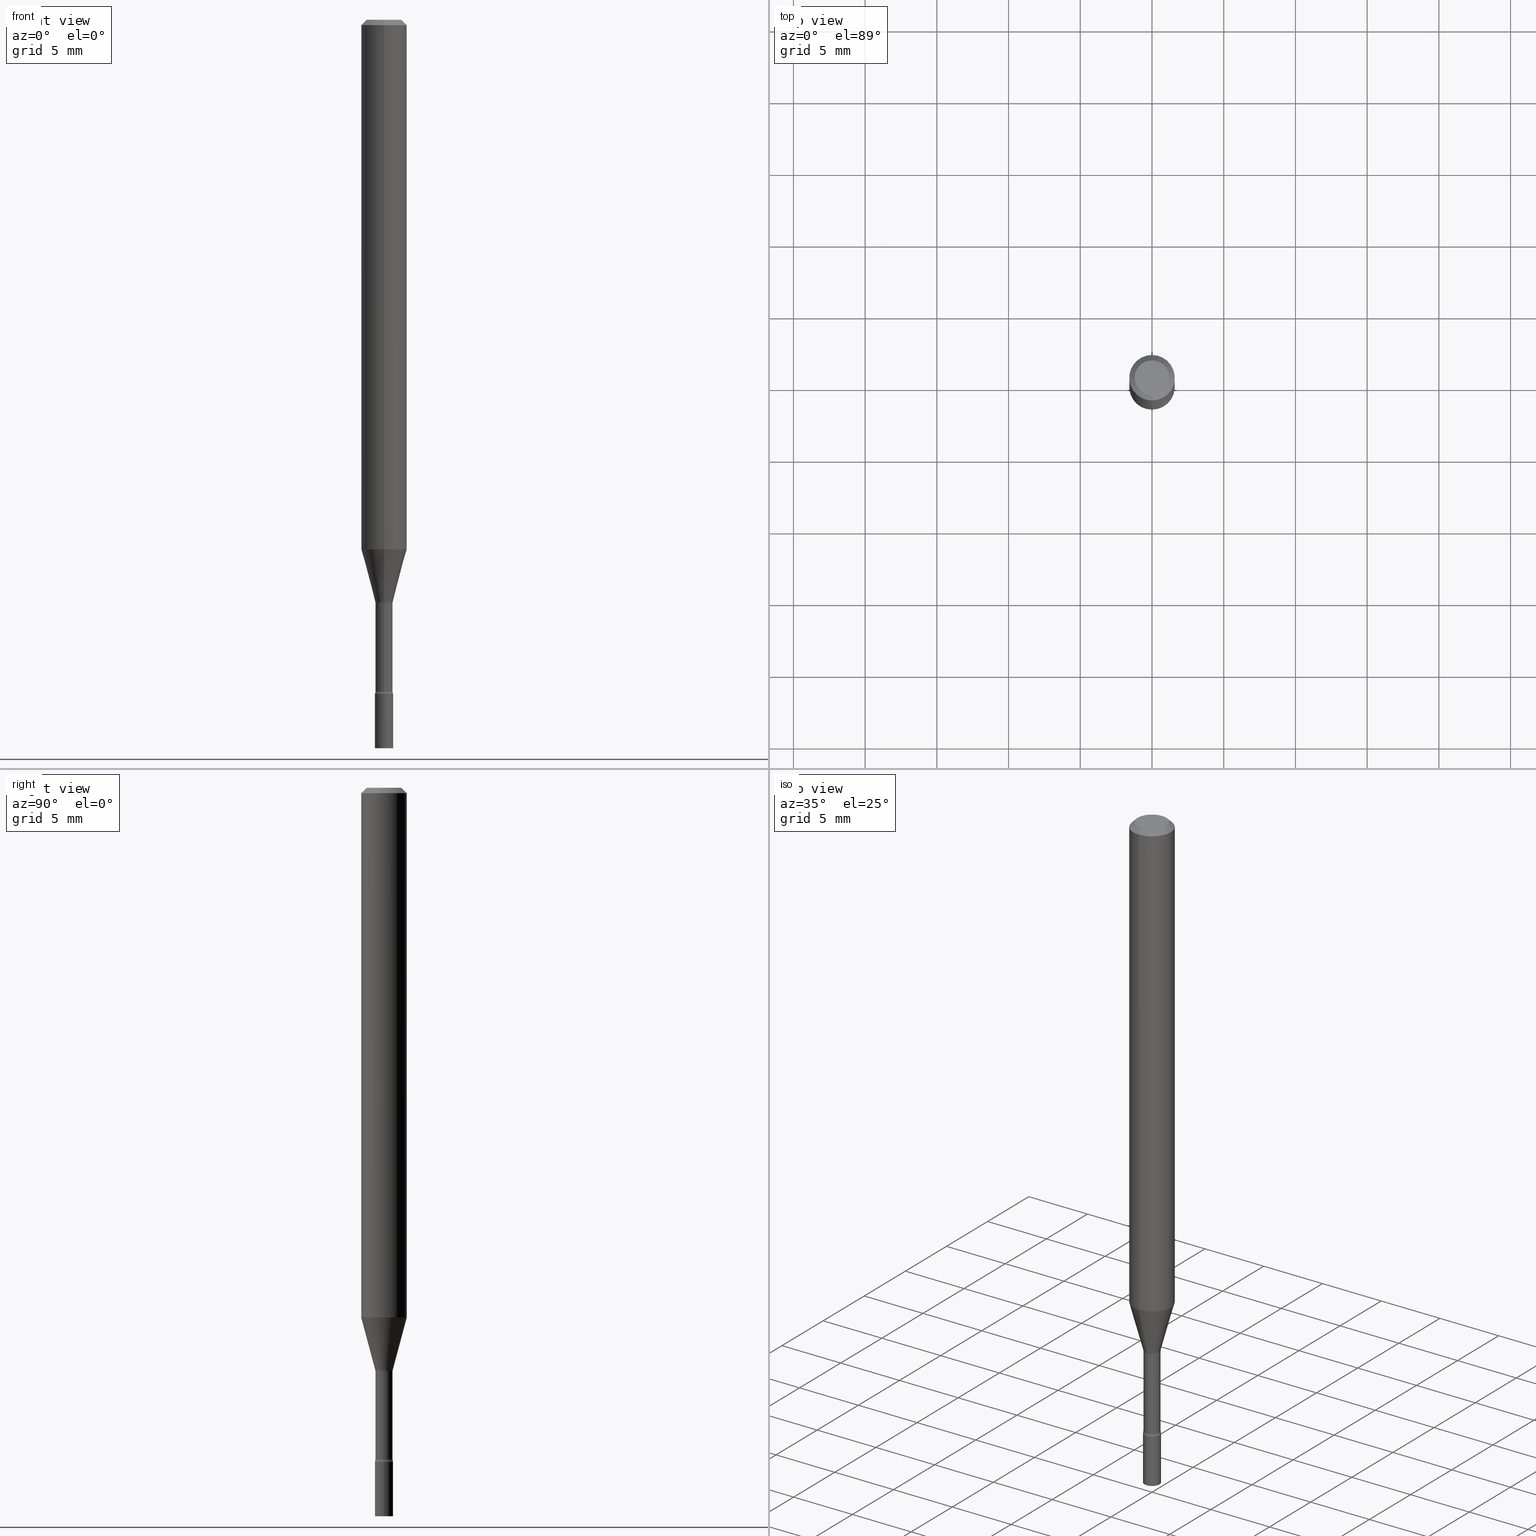
[diagram: canonical four-view strip — front | top / right | iso, engineering-drawing reading convention]
A machine part, canonical four-view strip (front | top / right | iso — engineering-drawing reading convention). The complete STEP part file that produces these views, byte-faithful:
ISO-10303-21;
HEADER;
FILE_DESCRIPTION (( 'STEP AP203' ),
    '1' );
FILE_NAME ('01321.STEP',
    '2024-03-08T21:13:56',
    ( '' ),
    ( '' ),
    'SwSTEP 2.0',
    'SolidWorks 2023',
    '' );
FILE_SCHEMA (( 'CONFIG_CONTROL_DESIGN' ));
ENDSEC;

DATA;
#1 = FACE_OUTER_BOUND ( 'NONE', #295, .T. ) ;
#2 = ADVANCED_FACE ( 'NONE', ( #324 ), #328, .F. ) ;
#3 = ADVANCED_FACE ( 'NONE', ( #420 ), #341, .T. ) ;
#4 = APPROVAL_STATUS ( 'not_yet_approved' ) ;
#5 = ORIENTED_EDGE ( 'NONE', *, *, #453, .F. ) ;
#6 = CARTESIAN_POINT ( 'NONE',  ( 4.524117291442502256E-29, -6.459240476859818795E-15, -1.849999999999999867 ) ) ;
#7 = TOROIDAL_SURFACE ( 'NONE', #302, 0.03850000000000000644, 0.01500000000000002373 ) ;
#8 = DATE_AND_TIME ( #82, #26 ) ;
#9 = CARTESIAN_POINT ( 'NONE',  ( 4.524029854051359448E-29, -6.459365692180562873E-15, -1.849999999999999867 ) ) ;
#10 = DIMENSIONAL_EXPONENTS ( 1.000000000000000000, 0.000000000000000000, 0.000000000000000000, 0.000000000000000000, 0.000000000000000000, 0.000000000000000000, 0.000000000000000000 ) ;
#11 = MANIFOLD_SOLID_BREP ( 'Body-Move/Copy2[2]', #162 ) ;
#12 = PERSON_AND_ORGANIZATION ( #395, #385 ) ;
#13 = DIRECTION ( 'NONE',  ( -1.000000000000000000, 6.982962677686265922E-15, -4.876176775795935793E-29 ) ) ;
#14 = EDGE_CURVE ( 'NONE', #252, #445, #107, .T. ) ;
#15 = DIRECTION ( 'NONE',  ( 7.105427357600997914E-15, 1.000000000000000000, 0.000000000000000000 ) ) ;
#16 = ORIENTED_EDGE ( 'NONE', *, *, #142, .F. ) ;
#17 = DIRECTION ( 'NONE',  ( -2.445421542730464824E-29, 3.491549022800304245E-15, 1.000000000000000000 ) ) ;
#18 = CIRCLE ( 'NONE', #136, 0.02350000000000000352 ) ;
#19 = LOCAL_TIME ( 16, 13, 56.00000000000000000, #387 ) ;
#20 = DIRECTION ( 'NONE',  ( -2.445421542730464824E-29, 3.491549022800303850E-15, 1.000000000000000000 ) ) ;
#21 = EDGE_CURVE ( 'NONE', #482, #311, #138, .T. ) ;
#22 = DIRECTION ( 'NONE',  ( 7.105427357601001859E-15, 1.000000000000000000, 0.000000000000000000 ) ) ;
#23 = CIRCLE ( 'NONE', #318, 0.01500000000000002720 ) ;
#24 = CC_DESIGN_DATE_AND_TIME_ASSIGNMENT ( #62, #345, ( #164 ) ) ;
#25 =( NAMED_UNIT ( * ) SI_UNIT ( $, .STERADIAN. ) SOLID_ANGLE_UNIT ( ) );
#26 = LOCAL_TIME ( 16, 13, 56.00000000000000000, #43 ) ;
#27 = DESIGN_CONTEXT ( 'detailed design', #67, 'design' ) ;
#28 = DIRECTION ( 'NONE',  ( -1.807323732225330534E-15, -0.2588190451025182415, 0.9659258262890689783 ) ) ;
#29 = EDGE_CURVE ( 'NONE', #445, #252, #285, .T. ) ;
#30 = ORIENTED_EDGE ( 'NONE', *, *, #230, .F. ) ;
#31 = DIRECTION ( 'NONE',  ( -6.982962677686265133E-15, -1.000000000000000000, 0.000000000000000000 ) ) ;
#32 = AXIS2_PLACEMENT_3D ( 'NONE', #9, #332, #371 ) ;
#33 = ORIENTED_EDGE ( 'NONE', *, *, #61, .T. ) ;
#34 = AXIS2_PLACEMENT_3D ( 'NONE', #354, #388, #31 ) ;
#35 = VERTEX_POINT ( 'NONE', #176 ) ;
#36 = ORIENTED_EDGE ( 'NONE', *, *, #56, .T. ) ;
#37 = ORIENTED_EDGE ( 'NONE', *, *, #203, .F. ) ;
#38 = CARTESIAN_POINT ( 'NONE',  ( 0.02500000000000000139, -1.745740669421566924E-16, 1.219044193948984123E-30 ) ) ;
#39 = ORIENTED_EDGE ( 'NONE', *, *, #181, .T. ) ;
#40 = ORIENTED_EDGE ( 'NONE', *, *, #195, .F. ) ;
#41 = AXIS2_PLACEMENT_3D ( 'NONE', #236, #515, #397 ) ;
#42 = AXIS2_PLACEMENT_3D ( 'NONE', #313, #474, #269 ) ;
#43 = COORDINATED_UNIVERSAL_TIME_OFFSET ( 5, 0, .BEHIND. ) ;
#44 = CARTESIAN_POINT ( 'NONE',  ( -2.688440630908820659E-16, -0.03850000000000559919, -1.601974787463810834 ) ) ;
#45 = EDGE_CURVE ( 'NONE', #482, #192, #339, .T. ) ;
#46 = CARTESIAN_POINT ( 'NONE',  ( 3.908009831146620796E-29, -5.579818312959846669E-15, -1.598092501787272912 ) ) ;
#47 = DIRECTION ( 'NONE',  ( 4.937700262164548042E-15, 0.7071067811865451302, -0.7071067811865499042 ) ) ;
#48 = CARTESIAN_POINT ( 'NONE',  ( 4.508127964348888727E-29, -6.436411955380905868E-15, -1.843461651584688887 ) ) ;
#49 = APPROVAL_DATE_TIME ( #292, #178 ) ;
#50 = DIRECTION ( 'NONE',  ( -6.982962677686265922E-15, -1.000000000000000000, 3.483106191921935554E-15 ) ) ;
#51 = AXIS2_PLACEMENT_3D ( 'NONE', #125, #326, #284 ) ;
#52 = APPROVAL_ROLE ( '' ) ;
#53 = CIRCLE ( 'NONE', #145, 0.02350000000000000352 ) ;
#54 = APPROVAL_STATUS ( 'not_yet_approved' ) ;
#55 = FACE_OUTER_BOUND ( 'NONE', #433, .T. ) ;
#56 = EDGE_CURVE ( 'NONE', #196, #35, #489, .T. ) ;
#57 = CARTESIAN_POINT ( 'NONE',  ( -0.02500000000000000139, -6.543465893333030170E-15, -1.849999999999999867 ) ) ;
#58 = DIRECTION ( 'NONE',  ( -6.982962677686265922E-15, -1.000000000000000000, 4.370956789862821150E-15 ) ) ;
#59 = AXIS2_PLACEMENT_3D ( 'NONE', #427, #212, #379 ) ;
#60 = SECURITY_CLASSIFICATION ( '', '', #452 ) ;
#61 = EDGE_CURVE ( 'NONE', #196, #235, #89, .T. ) ;
#62 = DATE_AND_TIME ( #305, #216 ) ;
#63 = CARTESIAN_POINT ( 'NONE',  ( -0.02500000000000000139, -6.543465893333030170E-15, -2.000000000000000000 ) ) ;
#64 = CARTESIAN_POINT ( 'NONE',  ( -1.676687031750347678E-16, -0.02401111260566956770, -1.598092501787272912 ) ) ;
#65 = CIRCLE ( 'NONE', #365, 0.02500000000000000139 ) ;
#66 = CIRCLE ( 'NONE', #449, 0.01500000000000002720 ) ;
#67 = APPLICATION_CONTEXT ( 'configuration controlled 3d designs of mechanical parts and assemblies' ) ;
#68 = EDGE_CURVE ( 'NONE', #314, #481, #446, .T. ) ;
#69 = CARTESIAN_POINT ( 'NONE',  ( 1.723066134218695118E-16, 0.02349999999999356423, -1.843461651584688887 ) ) ;
#70 = DIRECTION ( 'NONE',  ( -6.982962677686265922E-15, -1.000000000000000000, 4.370956789862821150E-15 ) ) ;
#71 = DATE_AND_TIME ( #467, #19 ) ;
#72 = CARTESIAN_POINT ( 'NONE',  ( 3.073492131224302841E-16, 0.02401111260565840649, -1.598092501787272912 ) ) ;
#73 = EDGE_LOOP ( 'NONE', ( #401, #130, #16, #389 ) ) ;
#74 = APPROVAL ( #511, 'UNSPECIFIED' ) ;
#75 = CLOSED_SHELL ( 'NONE', ( #308, #105, #241, #155 ) ) ;
#76 = CIRCLE ( 'NONE', #95, 0.02401111260566398883 ) ;
#77 = DIRECTION ( 'NONE',  ( -2.445468806185136877E-29, 3.491481338843145188E-15, 1.000000000000000000 ) ) ;
#78 = ORIENTED_EDGE ( 'NONE', *, *, #344, .T. ) ;
#79 = DIRECTION ( 'NONE',  ( -2.445421542730464824E-29, 3.491549022800304245E-15, 1.000000000000000000 ) ) ;
#80 = PERSON_AND_ORGANIZATION_ROLE ( 'design_owner' ) ;
#81 = ORIENTED_EDGE ( 'NONE', *, *, #431, .F. ) ;
#82 = CALENDAR_DATE ( 2024, 8, 3 ) ;
#83 = ORIENTED_EDGE ( 'NONE', *, *, #356, .F. ) ;
#84 = CARTESIAN_POINT ( 'NONE',  ( 4.524117291442502256E-29, -6.459240476859818795E-15, -1.849999999999999867 ) ) ;
#85 = VERTEX_POINT ( 'NONE', #63 ) ;
#86 = FACE_OUTER_BOUND ( 'NONE', #473, .T. ) ;
#87 = ORIENTED_EDGE ( 'NONE', *, *, #421, .F. ) ;
#88 = VECTOR ( 'NONE', #20, 39.37007874015748143 ) ;
#89 = LINE ( 'NONE', #172, #207 ) ;
#90 = DIRECTION ( 'NONE',  ( -6.982962677686263555E-15, -1.000000000000000000, 0.000000000000000000 ) ) ;
#91 = ORIENTED_EDGE ( 'NONE', *, *, #384, .F. ) ;
#92 = DIRECTION ( 'NONE',  ( 2.438088387897960049E-29, -3.491481338843145188E-15, -1.000000000000000000 ) ) ;
#93 = CARTESIAN_POINT ( 'NONE',  ( 3.917503656175060877E-29, -5.593373503719994068E-15, -1.601974787463810834 ) ) ;
#94 = CARTESIAN_POINT ( 'NONE',  ( -1.745740669421115301E-16, -0.02500000000000647885, -1.849999999999999867 ) ) ;
#95 = AXIS2_PLACEMENT_3D ( 'NONE', #183, #266, #430 ) ;
#96 = ORIENTED_EDGE ( 'NONE', *, *, #294, .F. ) ;
#97 = LINE ( 'NONE', #495, #103 ) ;
#98 = UNCERTAINTY_MEASURE_WITH_UNIT (LENGTH_MEASURE( 1.000000000000000082E-05 ), #512, 'distance_accuracy_value', 'NONE');
#99 = DIRECTION ( 'NONE',  ( -6.982962677686265133E-15, -1.000000000000000000, 0.000000000000000000 ) ) ;
#100 = DIRECTION ( 'NONE',  ( -2.445421542730464824E-29, 3.491549022800304245E-15, 1.000000000000000000 ) ) ;
#101 = ADVANCED_FACE ( 'NONE', ( #303 ), #7, .F. ) ;
#102 = DIRECTION ( 'NONE',  ( -2.445421542730464824E-29, 3.491549022800303850E-15, 1.000000000000000000 ) ) ;
#103 = VECTOR ( 'NONE', #343, 39.37007874015748143 ) ;
#104 = AXIS2_PLACEMENT_3D ( 'NONE', #501, #141, #256 ) ;
#105 = ADVANCED_FACE ( 'NONE', ( #262 ), #381, .T. ) ;
#106 = APPROVAL_ROLE ( '' ) ;
#107 = CIRCLE ( 'NONE', #59, 0.02500000000000000139 ) ;
#108 = AXIS2_PLACEMENT_3D ( 'NONE', #331, #493, #455 ) ;
#109 = DIRECTION ( 'NONE',  ( -2.445421542730464824E-29, 3.491549022800304245E-15, 1.000000000000000000 ) ) ;
#110 = AXIS2_PLACEMENT_3D ( 'NONE', #507, #386, #437 ) ;
#111 = ADVANCED_FACE ( 'NONE', ( #133 ), #330, .T. ) ;
#112 = ORIENTED_EDGE ( 'NONE', *, *, #230, .T. ) ;
#113 = MECHANICAL_CONTEXT ( 'NONE', #165, 'mechanical' ) ;
#114 = AXIS2_PLACEMENT_3D ( 'NONE', #338, #498, #58 ) ;
#115 = VERTEX_POINT ( 'NONE', #94 ) ;
#116 = CC_DESIGN_APPROVAL ( #178, ( #304 ) ) ;
#117 = ORIENTED_EDGE ( 'NONE', *, *, #488, .T. ) ;
#118 = EDGE_LOOP ( 'NONE', ( #510, #257, #268, #81 ) ) ;
#119 = DATE_TIME_ROLE ( 'classification_date' ) ;
#120 = EDGE_LOOP ( 'NONE', ( #440, #33, #273, #96 ) ) ;
#121 = DIRECTION ( 'NONE',  ( -2.445468806185136597E-29, 3.491481338843145583E-15, 1.000000000000000000 ) ) ;
#122 = ADVANCED_FACE ( 'NONE', ( #55 ), #425, .F. ) ;
#123 = PERSON_AND_ORGANIZATION ( #395, #385 ) ;
#124 = CARTESIAN_POINT ( 'NONE',  ( 7.069883866677136078E-46, -1.009431121574484433E-31, -2.891069593990396938E-17 ) ) ;
#125 = CARTESIAN_POINT ( 'NONE',  ( 4.508127964348888727E-29, -6.436411955380905868E-15, -1.843461651584688887 ) ) ;
#126 = ORIENTED_EDGE ( 'NONE', *, *, #463, .F. ) ;
#127 = PERSON_AND_ORGANIZATION ( #395, #385 ) ;
#128 = CONICAL_SURFACE ( 'NONE', #478, 0.06250000000000000000, 0.7853981633974483900 ) ;
#129 = CARTESIAN_POINT ( 'NONE',  ( 0.000000000000000000, 0.000000000000000000, 0.000000000000000000 ) ) ;
#130 = ORIENTED_EDGE ( 'NONE', *, *, #21, .T. ) ;
#131 = CARTESIAN_POINT ( 'NONE',  ( -0.02500000000000000139, 1.776356839400250563E-16, -1.229733772563726656E-30 ) ) ;
#132 = PERSON_AND_ORGANIZATION ( #395, #385 ) ;
#133 = FACE_OUTER_BOUND ( 'NONE', #516, .T. ) ;
#134 = CARTESIAN_POINT ( 'NONE',  ( -4.364351673553912750E-16, -0.06250000000000005551, -0.01499999999999981209 ) ) ;
#135 = CC_DESIGN_PERSON_AND_ORGANIZATION_ASSIGNMENT ( #123, #406, ( #304 ) ) ;
#136 = AXIS2_PLACEMENT_3D ( 'NONE', #317, #79, #472 ) ;
#137 = DIRECTION ( 'NONE',  ( -2.445421542730464824E-29, 3.491549022800304245E-15, 1.000000000000000000 ) ) ;
#138 = LINE ( 'NONE', #234, #383 ) ;
#139 = AXIS2_PLACEMENT_3D ( 'NONE', #291, #92, #13 ) ;
#140 = VECTOR ( 'NONE', #174, 39.37007874015748143 ) ;
#141 = DIRECTION ( 'NONE',  ( -1.000000000000000000, 6.982962677686265922E-15, -4.883557194083112340E-29 ) ) ;
#142 = EDGE_CURVE ( 'NONE', #243, #311, #297, .T. ) ;
#143 = CARTESIAN_POINT ( 'NONE',  ( 4.508040835982679892E-29, -6.436536728160355128E-15, -1.843461651584688887 ) ) ;
#144 = AXIS2_PLACEMENT_3D ( 'NONE', #84, #448, #407 ) ;
#145 = AXIS2_PLACEMENT_3D ( 'NONE', #143, #461, #342 ) ;
#146 = ORIENTED_EDGE ( 'NONE', *, *, #344, .F. ) ;
#147 = ORIENTED_EDGE ( 'NONE', *, *, #480, .F. ) ;
#148 = CC_DESIGN_PERSON_AND_ORGANIZATION_ASSIGNMENT ( #476, #80, ( #460 ) ) ;
#149 = PLANE ( 'NONE',  #42 ) ;
#150 = ORIENTED_EDGE ( 'NONE', *, *, #333, .F. ) ;
#151 = CARTESIAN_POINT ( 'NONE',  ( -4.364351673553561707E-16, -0.06250000000000509315, -1.454450018504813924 ) ) ;
#152 = EDGE_LOOP ( 'NONE', ( #514, #360 ) ) ;
#153 = CC_DESIGN_SECURITY_CLASSIFICATION ( #60, ( #304 ) ) ;
#154 = PERSON_AND_ORGANIZATION_ROLE ( 'creator' ) ;
#155 = ADVANCED_FACE ( 'NONE', ( #377 ), #170, .T. ) ;
#156 = VERTEX_POINT ( 'NONE', #258 ) ;
#157 = DIRECTION ( 'NONE',  ( 1.000000000000000000, -6.982962677686254878E-15, 0.000000000000000000 ) ) ;
#158 = DIRECTION ( 'NONE',  ( -2.445421542730464824E-29, 3.491549022800304245E-15, 1.000000000000000000 ) ) ;
#159 = DIRECTION ( 'NONE',  ( -2.445468806185136597E-29, 3.491481338843145583E-15, 1.000000000000000000 ) ) ;
#160 = CARTESIAN_POINT ( 'NONE',  ( 7.069883866677136078E-46, -1.009431121574484433E-31, -2.891069593990396938E-17 ) ) ;
#161 = CYLINDRICAL_SURFACE ( 'NONE', #435, 0.02350000000000000352 ) ;
#162 = CLOSED_SHELL ( 'NONE', ( #101, #3, #122, #391, #111, #404, #414, #281, #347, #2, #505, #286, #213, #466 ) ) ;
#163 = AXIS2_PLACEMENT_3D ( 'NONE', #351, #475, #193 ) ;
#164 = PRODUCT_DEFINITION ( 'UNKNOWN', '', #304, #27 ) ;
#165 = APPLICATION_CONTEXT ( 'configuration controlled 3d designs of mechanical parts and assemblies' ) ;
#166 = SHAPE_DEFINITION_REPRESENTATION ( #413, #248 ) ;
#167 = LINE ( 'NONE', #131, #353 ) ;
#168 = CARTESIAN_POINT ( 'NONE',  ( 3.668132314095704891E-31, -5.237323534200467140E-17, -0.01500000000000003067 ) ) ;
#169 = APPROVAL ( #4, 'UNSPECIFIED' ) ;
#170 = PLANE ( 'NONE',  #139 ) ;
#171 = AXIS2_PLACEMENT_3D ( 'NONE', #457, #249, #253 ) ;
#172 = CARTESIAN_POINT ( 'NONE',  ( -4.287811248607203282E-16, -0.06250000000000005551, -0.01499999999999981209 ) ) ;
#173 = VECTOR ( 'NONE', #77, 39.37007874015748143 ) ;
#174 = DIRECTION ( 'NONE',  ( 1.839019923739600710E-15, 0.2588190451025250138, 0.9659258262890670910 ) ) ;
#175 = DIRECTION ( 'NONE',  ( -6.982962677686265922E-15, -1.000000000000000000, 3.491549022800304639E-15 ) ) ;
#176 = CARTESIAN_POINT ( 'NONE',  ( 3.840629472727447874E-16, 0.04749999999999999362, -1.947592745229183872E-16 ) ) ;
#177 = VECTOR ( 'NONE', #224, 39.37007874015748143 ) ;
#178 = APPROVAL ( #54, 'UNSPECIFIED' ) ;
#179 = ORIENTED_EDGE ( 'NONE', *, *, #479, .F. ) ;
#180 = CARTESIAN_POINT ( 'NONE',  ( 3.556743408076396207E-29, -5.078283540822369655E-15, -1.454450018504814146 ) ) ;
#181 = EDGE_CURVE ( 'NONE', #85, #252, #167, .T. ) ;
#182 = EDGE_CURVE ( 'NONE', #156, #115, #327, .T. ) ;
#183 = CARTESIAN_POINT ( 'NONE',  ( 3.908009831146620796E-29, -5.579818312959846669E-15, -1.598092501787272912 ) ) ;
#184 = CIRCLE ( 'NONE', #114, 0.06250000000000000000 ) ;
#185 = LOCAL_TIME ( 16, 13, 56.00000000000000000, #447 ) ;
#186 = EDGE_LOOP ( 'NONE', ( #399, #190, #298, #83 ) ) ;
#187 = ORIENTED_EDGE ( 'NONE', *, *, #421, .T. ) ;
#188 = DIRECTION ( 'NONE',  ( -2.445421542730464824E-29, 3.491549022800304245E-15, 1.000000000000000000 ) ) ;
#189 = ORIENTED_EDGE ( 'NONE', *, *, #261, .T. ) ;
#190 = ORIENTED_EDGE ( 'NONE', *, *, #480, .T. ) ;
#191 = DIRECTION ( 'NONE',  ( -2.445421542730464824E-29, 3.491549022800304245E-15, 1.000000000000000000 ) ) ;
#192 = VERTEX_POINT ( 'NONE', #415 ) ;
#193 = DIRECTION ( 'NONE',  ( -6.982962677686265133E-15, -1.000000000000000000, 0.000000000000000000 ) ) ;
#194 = ORIENTED_EDGE ( 'NONE', *, *, #182, .T. ) ;
#195 = EDGE_CURVE ( 'NONE', #235, #352, #309, .T. ) ;
#196 = VERTEX_POINT ( 'NONE', #206 ) ;
#197 = CARTESIAN_POINT ( 'NONE',  ( 1.669775429036686571E-16, 0.02349999999999441078, -1.601974787463810834 ) ) ;
#198 = AXIS2_PLACEMENT_3D ( 'NONE', #48, #204, #418 ) ;
#199 = DIRECTION ( 'NONE',  ( -2.445421542730464824E-29, 3.491549022800304245E-15, 1.000000000000000000 ) ) ;
#200 = DIRECTION ( 'NONE',  ( -1.000000000000000000, 6.982962677686265922E-15, -4.883557194083112340E-29 ) ) ;
#201 = DIRECTION ( 'NONE',  ( -2.445421542730464824E-29, 3.491549022800304245E-15, 1.000000000000000000 ) ) ;
#202 = DIRECTION ( 'NONE',  ( -6.982962677686265922E-15, -1.000000000000000000, 3.491549022800304245E-15 ) ) ;
#203 = EDGE_CURVE ( 'NONE', #403, #235, #334, .T. ) ;
#204 = DIRECTION ( 'NONE',  ( -2.445421542730464824E-29, 3.491549022800304245E-15, 1.000000000000000000 ) ) ;
#205 = PERSON_AND_ORGANIZATION_ROLE ( 'classification_officer' ) ;
#206 = CARTESIAN_POINT ( 'NONE',  ( -3.773273898774340269E-16, -0.04749999999999999362, 1.369378826431104608E-16 ) ) ;
#207 = VECTOR ( 'NONE', #240, 39.37007874015748143 ) ;
#208 = CONICAL_SURFACE ( 'NONE', #163, 0.02401111260566398883, 0.2617993877991502960 ) ;
#209 = CC_DESIGN_DATE_AND_TIME_ASSIGNMENT ( #325, #119, ( #60 ) ) ;
#210 = DIRECTION ( 'NONE',  ( -6.982962677686265922E-15, -1.000000000000000000, 0.000000000000000000 ) ) ;
#211 = CARTESIAN_POINT ( 'NONE',  ( 2.735589532676777152E-16, 0.03849999999999441369, -1.601974787463810834 ) ) ;
#212 = DIRECTION ( 'NONE',  ( -2.445468806185136597E-29, 3.491481338843145583E-15, 1.000000000000000000 ) ) ;
#213 = ADVANCED_FACE ( 'NONE', ( #296 ), #161, .T. ) ;
#214 = FACE_OUTER_BOUND ( 'NONE', #322, .T. ) ;
#215 = AXIS2_PLACEMENT_3D ( 'NONE', #93, #288, #210 ) ;
#216 = LOCAL_TIME ( 16, 13, 56.00000000000000000, #348 ) ;
#217 = CARTESIAN_POINT ( 'NONE',  ( 2.735589532676837796E-16, 0.03849999999999359490, -1.843461651584688887 ) ) ;
#218 = LINE ( 'NONE', #380, #140 ) ;
#219 =( NAMED_UNIT ( * ) PLANE_ANGLE_UNIT ( ) SI_UNIT ( $, .RADIAN. ) );
#220 = AXIS2_PLACEMENT_3D ( 'NONE', #129, #159, #484 ) ;
#221 = LINE ( 'NONE', #310, #177 ) ;
#222 = EDGE_LOOP ( 'NONE', ( #355, #513 ) ) ;
#223 = DIRECTION ( 'NONE',  ( 6.982962677686265922E-15, 1.000000000000000000, -3.483106191921935554E-15 ) ) ;
#224 = DIRECTION ( 'NONE',  ( -2.445421542730464824E-29, 3.491549022800303850E-15, 1.000000000000000000 ) ) ;
#225 = ORIENTED_EDGE ( 'NONE', *, *, #294, .T. ) ;
#226 =( LENGTH_UNIT ( ) NAMED_UNIT ( * ) SI_UNIT ( $, .METRE. ) );
#227 = AXIS2_PLACEMENT_3D ( 'NONE', #46, #201, #465 ) ;
#228 = EDGE_LOOP ( 'NONE', ( #374, #229, #359, #91 ) ) ;
#229 = ORIENTED_EDGE ( 'NONE', *, *, #45, .T. ) ;
#230 = EDGE_CURVE ( 'NONE', #263, #352, #97, .T. ) ;
#231 = ORIENTED_EDGE ( 'NONE', *, *, #463, .T. ) ;
#232 = ORIENTED_EDGE ( 'NONE', *, *, #293, .F. ) ;
#233 = FACE_OUTER_BOUND ( 'NONE', #186, .T. ) ;
#234 = CARTESIAN_POINT ( 'NONE',  ( 1.669775429036235194E-16, 0.02350000000000000352, -8.205140203580716672E-17 ) ) ;
#235 = VERTEX_POINT ( 'NONE', #134 ) ;
#236 = CARTESIAN_POINT ( 'NONE',  ( 3.668132314095704891E-31, -5.237323534200467140E-17, -0.01500000000000003067 ) ) ;
#237 = AXIS2_PLACEMENT_3D ( 'NONE', #180, #312, #70 ) ;
#238 = APPROVAL_PERSON_ORGANIZATION ( #132, #169, #247 ) ;
#239 = ORIENTED_EDGE ( 'NONE', *, *, #254, .F. ) ;
#240 = DIRECTION ( 'NONE',  ( -4.851104656540964275E-15, -0.7071067811865500152, -0.7071067811865450192 ) ) ;
#241 = ADVANCED_FACE ( 'NONE', ( #459 ), #462, .T. ) ;
#242 = CARTESIAN_POINT ( 'NONE',  ( -1.676687031750347678E-16, -0.02401111260566956770, -1.598092501787272912 ) ) ;
#243 = VERTEX_POINT ( 'NONE', #419 ) ;
#244 = DIRECTION ( 'NONE',  ( 1.000000000000000000, -6.982962677686265922E-15, 4.876176775795935793E-29 ) ) ;
#245 = PERSON_AND_ORGANIZATION ( #395, #385 ) ;
#246 = DIRECTION ( 'NONE',  ( -2.445468806185136877E-29, 3.491481338843145188E-15, 1.000000000000000000 ) ) ;
#247 = APPROVAL_ROLE ( '' ) ;
#248 = ADVANCED_BREP_SHAPE_REPRESENTATION ( '01321', ( #362, #11, #110 ), #408 ) ;
#249 = DIRECTION ( 'NONE',  ( -2.445468806185136597E-29, 3.491481338843145583E-15, 1.000000000000000000 ) ) ;
#250 = TOROIDAL_SURFACE ( 'NONE', #51, 0.03850000000000002726, 0.01500000000000003067 ) ;
#251 = TOROIDAL_SURFACE ( 'NONE', #375, 0.03850000000000000644, 0.01500000000000002373 ) ;
#252 = VERTEX_POINT ( 'NONE', #57 ) ;
#253 = DIRECTION ( 'NONE',  ( 1.000000000000000000, -6.982962677686267499E-15, 4.876176775795936353E-29 ) ) ;
#254 = EDGE_CURVE ( 'NONE', #481, #311, #272, .T. ) ;
#255 = APPLICATION_PROTOCOL_DEFINITION ( 'international standard', 'config_control_design', 1994, #67 ) ;
#256 = DIRECTION ( 'NONE',  ( -6.982962677686267499E-15, -1.000000000000000000, 0.000000000000000000 ) ) ;
#257 = ORIENTED_EDGE ( 'NONE', *, *, #441, .T. ) ;
#258 = CARTESIAN_POINT ( 'NONE',  ( 1.776356839400704158E-16, 0.02499999999999356209, -1.849999999999999867 ) ) ;
#259 = AXIS2_PLACEMENT_3D ( 'NONE', #124, #17, #283 ) ;
#260 = CC_DESIGN_APPROVAL ( #169, ( #60 ) ) ;
#261 = EDGE_CURVE ( 'NONE', #403, #263, #184, .T. ) ;
#262 = FACE_OUTER_BOUND ( 'NONE', #152, .T. ) ;
#263 = VERTEX_POINT ( 'NONE', #299 ) ;
#264 = CC_DESIGN_PERSON_AND_ORGANIZATION_ASSIGNMENT ( #369, #154, ( #304 ) ) ;
#265 = CONICAL_SURFACE ( 'NONE', #41, 0.06250000000000000000, 0.7853981633974483900 ) ;
#266 = DIRECTION ( 'NONE',  ( -2.445421542730464824E-29, 3.491549022800304245E-15, 1.000000000000000000 ) ) ;
#267 = ORIENTED_EDGE ( 'NONE', *, *, #181, .F. ) ;
#268 = ORIENTED_EDGE ( 'NONE', *, *, #261, .F. ) ;
#269 = DIRECTION ( 'NONE',  ( -6.982962677686265922E-15, -1.000000000000000000, 3.491549022800303850E-15 ) ) ;
#270 = ORIENTED_EDGE ( 'NONE', *, *, #29, .F. ) ;
#271 = LINE ( 'NONE', #38, #173 ) ;
#272 = CIRCLE ( 'NONE', #496, 0.01500000000000002720 ) ;
#273 = ORIENTED_EDGE ( 'NONE', *, *, #195, .T. ) ;
#274 = CARTESIAN_POINT ( 'NONE',  ( 3.668132314095704891E-31, -5.237323534200467140E-17, -0.01500000000000003067 ) ) ;
#275 = ORIENTED_EDGE ( 'NONE', *, *, #61, .F. ) ;
#276 = CALENDAR_DATE ( 2024, 8, 3 ) ;
#277 = CC_DESIGN_PERSON_AND_ORGANIZATION_ASSIGNMENT ( #127, #456, ( #164 ) ) ;
#278 = ORIENTED_EDGE ( 'NONE', *, *, #14, .F. ) ;
#279 = LINE ( 'NONE', #520, #469 ) ;
#280 = ORIENTED_EDGE ( 'NONE', *, *, #68, .F. ) ;
#281 = ADVANCED_FACE ( 'NONE', ( #214 ), #487, .T. ) ;
#282 = APPROVAL_DATE_TIME ( #8, #169 ) ;
#283 = DIRECTION ( 'NONE',  ( -6.982962677686266711E-15, -1.000000000000000000, 3.491549022800304245E-15 ) ) ;
#284 = DIRECTION ( 'NONE',  ( -6.982962677686266711E-15, -1.000000000000000000, 3.491549022800304245E-15 ) ) ;
#285 = CIRCLE ( 'NONE', #144, 0.02500000000000000139 ) ;
#286 = ADVANCED_FACE ( 'NONE', ( #411 ), #250, .F. ) ;
#287 = CONICAL_SURFACE ( 'NONE', #426, 0.02401111260566398883, 0.2617993877991502960 ) ;
#288 = DIRECTION ( 'NONE',  ( -2.445421542730464824E-29, 3.491549022800304245E-15, 1.000000000000000000 ) ) ;
#289 = DIRECTION ( 'NONE',  ( -2.445421542730464824E-29, 3.491549022800304245E-15, 1.000000000000000000 ) ) ;
#290 = DIRECTION ( 'NONE',  ( -6.982962677686265922E-15, -1.000000000000000000, 3.491549022800304245E-15 ) ) ;
#291 = CARTESIAN_POINT ( 'NONE',  ( 1.745740669422055771E-16, 0.02499999999999301739, -2.000000000000000000 ) ) ;
#292 = DATE_AND_TIME ( #276, #185 ) ;
#293 = EDGE_CURVE ( 'NONE', #35, #196, #337, .T. ) ;
#294 = EDGE_CURVE ( 'NONE', #35, #352, #279, .T. ) ;
#295 = EDGE_LOOP ( 'NONE', ( #396, #39, #270, #179 ) ) ;
#296 = FACE_OUTER_BOUND ( 'NONE', #228, .T. ) ;
#297 = CIRCLE ( 'NONE', #215, 0.02350000000000000352 ) ;
#298 = ORIENTED_EDGE ( 'NONE', *, *, #431, .T. ) ;
#299 = CARTESIAN_POINT ( 'NONE',  ( 4.440892098500979177E-16, 0.06249999999999489991, -1.454450018504814368 ) ) ;
#300 = CARTESIAN_POINT ( 'NONE',  ( 0.000000000000000000, 0.000000000000000000, 0.000000000000000000 ) ) ;
#301 = EDGE_CURVE ( 'NONE', #314, #243, #23, .T. ) ;
#302 = AXIS2_PLACEMENT_3D ( 'NONE', #428, #137, #412 ) ;
#303 = FACE_OUTER_BOUND ( 'NONE', #335, .T. ) ;
#304 = PRODUCT_DEFINITION_FORMATION_WITH_SPECIFIED_SOURCE ( 'ANY', '', #460, .NOT_KNOWN. ) ;
#305 = CALENDAR_DATE ( 2024, 8, 3 ) ;
#306 = APPLICATION_PROTOCOL_DEFINITION ( 'international standard', 'config_control_design', 1994, #165 ) ;
#307 = CARTESIAN_POINT ( 'NONE',  ( 4.440892098500983121E-16, 0.06249999999999995143, -0.01500000000000024751 ) ) ;
#308 = ADVANCED_FACE ( 'NONE', ( #1 ), #491, .T. ) ;
#309 = CIRCLE ( 'NONE', #416, 0.06250000000000000000 ) ;
#310 = CARTESIAN_POINT ( 'NONE',  ( -1.640996229256272766E-16, -0.02350000000000000352, 8.205140203580716672E-17 ) ) ;
#311 = VERTEX_POINT ( 'NONE', #197 ) ;
#312 = DIRECTION ( 'NONE',  ( -2.445421542730464824E-29, 3.491549022800304245E-15, 1.000000000000000000 ) ) ;
#313 = CARTESIAN_POINT ( 'NONE',  ( 1.745740669422019040E-16, 0.02499999999999354475, -1.849999999999999867 ) ) ;
#314 = VERTEX_POINT ( 'NONE', #242 ) ;
#315 = CARTESIAN_POINT ( 'NONE',  ( 3.917579371037813479E-29, -5.593265075727110025E-15, -1.601974787463810834 ) ) ;
#316 = VERTEX_POINT ( 'NONE', #368 ) ;
#317 = CARTESIAN_POINT ( 'NONE',  ( 3.917503656175060877E-29, -5.593373503719994068E-15, -1.601974787463810834 ) ) ;
#318 = AXIS2_PLACEMENT_3D ( 'NONE', #44, #200, #90 ) ;
#319 = EDGE_LOOP ( 'NONE', ( #239, #280, #422, #443 ) ) ;
#320 = ORIENTED_EDGE ( 'NONE', *, *, #356, .T. ) ;
#321 = CARTESIAN_POINT ( 'NONE',  ( 4.890937612370273194E-29, -6.982962677686291165E-15, -2.000000000000000000 ) ) ;
#322 = EDGE_LOOP ( 'NONE', ( #30, #320, #350, #519 ) ) ;
#323 = DIRECTION ( 'NONE',  ( -2.445468806185136597E-29, 3.491481338843145583E-15, 1.000000000000000000 ) ) ;
#324 = FACE_OUTER_BOUND ( 'NONE', #506, .T. ) ;
#325 = DATE_AND_TIME ( #372, #417 ) ;
#326 = DIRECTION ( 'NONE',  ( -2.445421542730464824E-29, 3.491549022800304245E-15, 1.000000000000000000 ) ) ;
#327 = CIRCLE ( 'NONE', #32, 0.02500000000000000139 ) ;
#328 = PLANE ( 'NONE',  #108 ) ;
#329 = CIRCLE ( 'NONE', #34, 0.02500000000000000139 ) ;
#330 = CYLINDRICAL_SURFACE ( 'NONE', #373, 0.06250000000000000000 ) ;
#331 = CARTESIAN_POINT ( 'NONE',  ( 3.316907271900976096E-16, 0.04749999999999999362, -1.803039265529664426E-16 ) ) ;
#332 = DIRECTION ( 'NONE',  ( -2.445421542730464824E-29, 3.491549022800304245E-15, 1.000000000000000000 ) ) ;
#333 = EDGE_CURVE ( 'NONE', #316, #85, #458, .T. ) ;
#334 = LINE ( 'NONE', #451, #88 ) ;
#335 = EDGE_LOOP ( 'NONE', ( #147, #483, #471, #358 ) ) ;
#336 = PERSON_AND_ORGANIZATION ( #395, #385 ) ;
#337 = CIRCLE ( 'NONE', #346, 0.04749999999999999362 ) ;
#338 = CARTESIAN_POINT ( 'NONE',  ( 3.556743408076396207E-29, -5.078283540822369655E-15, -1.454450018504814146 ) ) ;
#339 = CIRCLE ( 'NONE', #502, 0.02350000000000000352 ) ;
#340 = CIRCLE ( 'NONE', #436, 0.06250000000000000000 ) ;
#341 = CYLINDRICAL_SURFACE ( 'NONE', #405, 0.02350000000000000352 ) ;
#342 = DIRECTION ( 'NONE',  ( -6.982962677686265922E-15, -1.000000000000000000, 0.000000000000000000 ) ) ;
#343 = DIRECTION ( 'NONE',  ( -2.445421542730464824E-29, 3.491549022800303850E-15, 1.000000000000000000 ) ) ;
#344 = EDGE_CURVE ( 'NONE', #85, #316, #65, .T. ) ;
#345 = DATE_TIME_ROLE ( 'creation_date' ) ;
#346 = AXIS2_PLACEMENT_3D ( 'NONE', #160, #289, #450 ) ;
#347 = ADVANCED_FACE ( 'NONE', ( #86 ), #265, .T. ) ;
#348 = COORDINATED_UNIVERSAL_TIME_OFFSET ( 5, 0, .BEHIND. ) ;
#349 = DIRECTION ( 'NONE',  ( -6.982962677686265922E-15, -1.000000000000000000, 3.491549022800304245E-15 ) ) ;
#350 = ORIENTED_EDGE ( 'NONE', *, *, #203, .T. ) ;
#351 = CARTESIAN_POINT ( 'NONE',  ( 3.908009831146620796E-29, -5.579818312959846669E-15, -1.598092501787272912 ) ) ;
#352 = VERTEX_POINT ( 'NONE', #307 ) ;
#353 = VECTOR ( 'NONE', #246, 39.37007874015748143 ) ;
#354 = CARTESIAN_POINT ( 'NONE',  ( 4.524029854051359448E-29, -6.459365692180562873E-15, -1.849999999999999867 ) ) ;
#355 = ORIENTED_EDGE ( 'NONE', *, *, #500, .F. ) ;
#356 = EDGE_CURVE ( 'NONE', #263, #403, #429, .T. ) ;
#357 = LENGTH_MEASURE_WITH_UNIT ( LENGTH_MEASURE( 0.02539999999999999897 ), #226 );
#358 = ORIENTED_EDGE ( 'NONE', *, *, #301, .F. ) ;
#359 = ORIENTED_EDGE ( 'NONE', *, *, #497, .T. ) ;
#360 = ORIENTED_EDGE ( 'NONE', *, *, #14, .T. ) ;
#361 = DIRECTION ( 'NONE',  ( 2.445421542730464824E-29, -3.491549022800304245E-15, -1.000000000000000000 ) ) ;
#362 = MANIFOLD_SOLID_BREP ( 'Body-Move/Copy2[1]', #75 ) ;
#363 = CC_DESIGN_PERSON_AND_ORGANIZATION_ASSIGNMENT ( #245, #205, ( #60 ) ) ;
#364 = EDGE_LOOP ( 'NONE', ( #150, #146 ) ) ;
#365 = AXIS2_PLACEMENT_3D ( 'NONE', #321, #121, #444 ) ;
#366 = CARTESIAN_POINT ( 'NONE',  ( 4.890937612370273194E-29, -6.982962677686291165E-15, -2.000000000000000000 ) ) ;
#367 = CARTESIAN_POINT ( 'NONE',  ( 4.508040835982679892E-29, -6.436536728160355128E-15, -1.843461651584688887 ) ) ;
#368 = CARTESIAN_POINT ( 'NONE',  ( 0.02500000000000000139, -7.157536744628447044E-15, -2.000000000000000000 ) ) ;
#369 = PERSON_AND_ORGANIZATION ( #395, #385 ) ;
#370 = CARTESIAN_POINT ( 'NONE',  ( 0.000000000000000000, 0.000000000000000000, 0.000000000000000000 ) ) ;
#371 = DIRECTION ( 'NONE',  ( -6.982962677686265133E-15, -1.000000000000000000, 0.000000000000000000 ) ) ;
#372 = CALENDAR_DATE ( 2024, 8, 3 ) ;
#373 = AXIS2_PLACEMENT_3D ( 'NONE', #454, #499, #290 ) ;
#374 = ORIENTED_EDGE ( 'NONE', *, *, #21, .F. ) ;
#375 = AXIS2_PLACEMENT_3D ( 'NONE', #315, #188, #349 ) ;
#376 = CARTESIAN_POINT ( 'NONE',  ( 0.000000000000000000, 0.000000000000000000, 0.000000000000000000 ) ) ;
#377 = FACE_OUTER_BOUND ( 'NONE', #364, .T. ) ;
#378 = DIRECTION ( 'NONE',  ( 1.000000000000000000, -7.105427357601001070E-15, 4.926316337431497142E-29 ) ) ;
#379 = DIRECTION ( 'NONE',  ( 1.000000000000000000, -6.982962677686254878E-15, 0.000000000000000000 ) ) ;
#380 = CARTESIAN_POINT ( 'NONE',  ( 1.706092163947622560E-16, 0.02401111260565840996, -1.598092501787272912 ) ) ;
#381 = PLANE ( 'NONE',  #464 ) ;
#382 = DIRECTION ( 'NONE',  ( 1.000000000000000000, -7.105427357601001070E-15, 4.926316337431497142E-29 ) ) ;
#383 = VECTOR ( 'NONE', #102, 39.37007874015748143 ) ;
#384 = EDGE_CURVE ( 'NONE', #311, #243, #18, .T. ) ;
#385 = ORGANIZATION ( 'UNSPECIFIED', 'UNSPECIFIED', '' ) ;
#386 = DIRECTION ( 'NONE',  ( 0.000000000000000000, 0.000000000000000000, 1.000000000000000000 ) ) ;
#387 = COORDINATED_UNIVERSAL_TIME_OFFSET ( 5, 0, .BEHIND. ) ;
#388 = DIRECTION ( 'NONE',  ( -2.445421542730464824E-29, 3.491549022800304245E-15, 1.000000000000000000 ) ) ;
#389 = ORIENTED_EDGE ( 'NONE', *, *, #497, .F. ) ;
#390 = FACE_OUTER_BOUND ( 'NONE', #118, .T. ) ;
#391 = ADVANCED_FACE ( 'NONE', ( #400 ), #128, .T. ) ;
#392 = ORIENTED_EDGE ( 'NONE', *, *, #293, .T. ) ;
#393 = AXIS2_PLACEMENT_3D ( 'NONE', #370, #410, #202 ) ;
#394 = CIRCLE ( 'NONE', #104, 0.01500000000000002720 ) ;
#395 = PERSON ( 'UNSPECIFIED', 'UNSPECIFIED', 'UNSPECIFIED', ('UNSPECIFIED'), ('UNSPECIFIED'), ('UNSPECIFIED') ) ;
#396 = ORIENTED_EDGE ( 'NONE', *, *, #333, .T. ) ;
#397 = DIRECTION ( 'NONE',  ( 6.982962677686265922E-15, 1.000000000000000000, -3.483106191921935554E-15 ) ) ;
#398 = PRODUCT_RELATED_PRODUCT_CATEGORY ( 'detail', '', ( #460 ) ) ;
#399 = ORIENTED_EDGE ( 'NONE', *, *, #441, .F. ) ;
#400 = FACE_OUTER_BOUND ( 'NONE', #120, .T. ) ;
#401 = ORIENTED_EDGE ( 'NONE', *, *, #453, .T. ) ;
#402 = CARTESIAN_POINT ( 'NONE',  ( 3.908009831146620796E-29, -5.579818312959846669E-15, -1.598092501787272912 ) ) ;
#403 = VERTEX_POINT ( 'NONE', #151 ) ;
#404 = ADVANCED_FACE ( 'NONE', ( #390 ), #208, .T. ) ;
#405 = AXIS2_PLACEMENT_3D ( 'NONE', #300, #199, #442 ) ;
#406 = PERSON_AND_ORGANIZATION_ROLE ( 'design_supplier' ) ;
#407 = DIRECTION ( 'NONE',  ( 1.000000000000000000, -6.982962677686254878E-15, 0.000000000000000000 ) ) ;
#408 =( GEOMETRIC_REPRESENTATION_CONTEXT ( 3 ) GLOBAL_UNCERTAINTY_ASSIGNED_CONTEXT ( ( #98 ) ) GLOBAL_UNIT_ASSIGNED_CONTEXT ( ( #512, #219, #25 ) ) REPRESENTATION_CONTEXT ( 'NONE', 'WORKASPACE' ) );
#409 = EDGE_LOOP ( 'NONE', ( #87, #5, #231, #503 ) ) ;
#410 = DIRECTION ( 'NONE',  ( -2.445421542730464824E-29, 3.491549022800304245E-15, 1.000000000000000000 ) ) ;
#411 = FACE_OUTER_BOUND ( 'NONE', #409, .T. ) ;
#412 = DIRECTION ( 'NONE',  ( -6.982962677686265922E-15, -1.000000000000000000, 3.491549022800304245E-15 ) ) ;
#413 = PRODUCT_DEFINITION_SHAPE ( 'NONE', 'NONE',  #164 ) ;
#414 = ADVANCED_FACE ( 'NONE', ( #233 ), #287, .T. ) ;
#415 = CARTESIAN_POINT ( 'NONE',  ( -1.640996229255822129E-16, -0.02350000000000643935, -1.843461651584688887 ) ) ;
#416 = AXIS2_PLACEMENT_3D ( 'NONE', #168, #100, #50 ) ;
#417 = LOCAL_TIME ( 16, 13, 56.00000000000000000, #492 ) ;
#418 = DIRECTION ( 'NONE',  ( -6.982962677686266711E-15, -1.000000000000000000, 3.491549022800304245E-15 ) ) ;
#419 = CARTESIAN_POINT ( 'NONE',  ( -1.640996229255880800E-16, -0.02350000000000559280, -1.601974787463810834 ) ) ;
#420 = FACE_OUTER_BOUND ( 'NONE', #73, .T. ) ;
#421 = EDGE_CURVE ( 'NONE', #482, #156, #66, .T. ) ;
#422 = ORIENTED_EDGE ( 'NONE', *, *, #301, .T. ) ;
#423 = DIRECTION ( 'NONE',  ( -2.445421542730464824E-29, 3.491549022800304245E-15, 1.000000000000000000 ) ) ;
#424 = LINE ( 'NONE', #64, #490 ) ;
#425 = TOROIDAL_SURFACE ( 'NONE', #198, 0.03850000000000002726, 0.01500000000000003067 ) ;
#426 = AXIS2_PLACEMENT_3D ( 'NONE', #402, #109, #99 ) ;
#427 = CARTESIAN_POINT ( 'NONE',  ( 4.524117291442502256E-29, -6.459240476859818795E-15, -1.849999999999999867 ) ) ;
#428 = CARTESIAN_POINT ( 'NONE',  ( 3.917579371037813479E-29, -5.593265075727110025E-15, -1.601974787463810834 ) ) ;
#429 = CIRCLE ( 'NONE', #237, 0.06250000000000000000 ) ;
#430 = DIRECTION ( 'NONE',  ( -6.982962677686265133E-15, -1.000000000000000000, 0.000000000000000000 ) ) ;
#431 = EDGE_CURVE ( 'NONE', #314, #403, #424, .T. ) ;
#432 = FACE_OUTER_BOUND ( 'NONE', #319, .T. ) ;
#433 = EDGE_LOOP ( 'NONE', ( #485, #187, #194, #126 ) ) ;
#434 = EDGE_LOOP ( 'NONE', ( #267, #78, #438, #278 ) ) ;
#435 = AXIS2_PLACEMENT_3D ( 'NONE', #376, #423, #175 ) ;
#436 = AXIS2_PLACEMENT_3D ( 'NONE', #274, #191, #439 ) ;
#437 = DIRECTION ( 'NONE',  ( 1.000000000000000000, 0.000000000000000000, 0.000000000000000000 ) ) ;
#438 = ORIENTED_EDGE ( 'NONE', *, *, #479, .T. ) ;
#439 = DIRECTION ( 'NONE',  ( -6.982962677686265922E-15, -1.000000000000000000, 3.483106191921935554E-15 ) ) ;
#440 = ORIENTED_EDGE ( 'NONE', *, *, #56, .F. ) ;
#441 = EDGE_CURVE ( 'NONE', #481, #263, #218, .T. ) ;
#442 = DIRECTION ( 'NONE',  ( -6.982962677686265922E-15, -1.000000000000000000, 3.491549022800304639E-15 ) ) ;
#443 = ORIENTED_EDGE ( 'NONE', *, *, #142, .T. ) ;
#444 = DIRECTION ( 'NONE',  ( 1.000000000000000000, -6.982962677686254878E-15, 0.000000000000000000 ) ) ;
#445 = VERTEX_POINT ( 'NONE', #504 ) ;
#446 = CIRCLE ( 'NONE', #227, 0.02401111260566398883 ) ;
#447 = COORDINATED_UNIVERSAL_TIME_OFFSET ( 5, 0, .BEHIND. ) ;
#448 = DIRECTION ( 'NONE',  ( -2.445468806185136597E-29, 3.491481338843145583E-15, 1.000000000000000000 ) ) ;
#449 = AXIS2_PLACEMENT_3D ( 'NONE', #217, #382, #22 ) ;
#450 = DIRECTION ( 'NONE',  ( -6.982962677686266711E-15, -1.000000000000000000, 3.491549022800304245E-15 ) ) ;
#451 = CARTESIAN_POINT ( 'NONE',  ( -4.364351673553916201E-16, -0.06250000000000000000, 2.182218139250190153E-16 ) ) ;
#452 = SECURITY_CLASSIFICATION_LEVEL ( 'unclassified' ) ;
#453 = EDGE_CURVE ( 'NONE', #192, #482, #53, .T. ) ;
#454 = CARTESIAN_POINT ( 'NONE',  ( 0.000000000000000000, 0.000000000000000000, 0.000000000000000000 ) ) ;
#455 = DIRECTION ( 'NONE',  ( 6.982962677686265922E-15, 1.000000000000000000, -3.491549022800303850E-15 ) ) ;
#456 = PERSON_AND_ORGANIZATION_ROLE ( 'creator' ) ;
#457 = CARTESIAN_POINT ( 'NONE',  ( 0.000000000000000000, 0.000000000000000000, 0.000000000000000000 ) ) ;
#458 = CIRCLE ( 'NONE', #517, 0.02500000000000000139 ) ;
#459 = FACE_OUTER_BOUND ( 'NONE', #434, .T. ) ;
#460 = PRODUCT ( '01321', '01321', '', ( #113 ) ) ;
#461 = DIRECTION ( 'NONE',  ( -2.445421542730464824E-29, 3.491549022800304245E-15, 1.000000000000000000 ) ) ;
#462 = CYLINDRICAL_SURFACE ( 'NONE', #171, 0.02500000000000000139 ) ;
#463 = EDGE_CURVE ( 'NONE', #192, #115, #394, .T. ) ;
#464 = AXIS2_PLACEMENT_3D ( 'NONE', #6, #494, #244 ) ;
#465 = DIRECTION ( 'NONE',  ( -6.982962677686265133E-15, -1.000000000000000000, 0.000000000000000000 ) ) ;
#466 = ADVANCED_FACE ( 'NONE', ( #432 ), #251, .F. ) ;
#467 = CALENDAR_DATE ( 2024, 8, 3 ) ;
#468 = CARTESIAN_POINT ( 'NONE',  ( 3.668132314095704891E-31, -5.237323534200467140E-17, -0.01500000000000003067 ) ) ;
#469 = VECTOR ( 'NONE', #47, 39.37007874015748143 ) ;
#470 = APPROVAL_PERSON_ORGANIZATION ( #12, #178, #52 ) ;
#471 = ORIENTED_EDGE ( 'NONE', *, *, #384, .T. ) ;
#472 = DIRECTION ( 'NONE',  ( -6.982962677686265922E-15, -1.000000000000000000, 0.000000000000000000 ) ) ;
#473 = EDGE_LOOP ( 'NONE', ( #275, #232, #225, #117 ) ) ;
#474 = DIRECTION ( 'NONE',  ( -2.445421542730464824E-29, 3.491549022800303850E-15, 1.000000000000000000 ) ) ;
#475 = DIRECTION ( 'NONE',  ( -2.445421542730464824E-29, 3.491549022800304245E-15, 1.000000000000000000 ) ) ;
#476 = PERSON_AND_ORGANIZATION ( #395, #385 ) ;
#477 = APPROVAL_DATE_TIME ( #71, #74 ) ;
#478 = AXIS2_PLACEMENT_3D ( 'NONE', #468, #361, #223 ) ;
#479 = EDGE_CURVE ( 'NONE', #316, #445, #271, .T. ) ;
#480 = EDGE_CURVE ( 'NONE', #481, #314, #76, .T. ) ;
#481 = VERTEX_POINT ( 'NONE', #72 ) ;
#482 = VERTEX_POINT ( 'NONE', #69 ) ;
#483 = ORIENTED_EDGE ( 'NONE', *, *, #254, .T. ) ;
#484 = DIRECTION ( 'NONE',  ( 1.000000000000000000, -6.982962677686267499E-15, 4.876176775795936353E-29 ) ) ;
#485 = ORIENTED_EDGE ( 'NONE', *, *, #45, .F. ) ;
#486 = DIRECTION ( 'NONE',  ( -6.982962677686265922E-15, -1.000000000000000000, 0.000000000000000000 ) ) ;
#487 = CYLINDRICAL_SURFACE ( 'NONE', #393, 0.06250000000000000000 ) ;
#488 = EDGE_CURVE ( 'NONE', #352, #235, #340, .T. ) ;
#489 = CIRCLE ( 'NONE', #259, 0.04749999999999999362 ) ;
#490 = VECTOR ( 'NONE', #28, 39.37007874015748143 ) ;
#491 = CYLINDRICAL_SURFACE ( 'NONE', #220, 0.02500000000000000139 ) ;
#492 = COORDINATED_UNIVERSAL_TIME_OFFSET ( 5, 0, .BEHIND. ) ;
#493 = DIRECTION ( 'NONE',  ( 2.445421542730464824E-29, -3.491549022800303850E-15, -1.000000000000000000 ) ) ;
#494 = DIRECTION ( 'NONE',  ( -2.438088387897960049E-29, 3.491481338843145188E-15, 1.000000000000000000 ) ) ;
#495 = CARTESIAN_POINT ( 'NONE',  ( 4.440892098500625669E-16, 0.06250000000000000000, -2.182218139250190153E-16 ) ) ;
#496 = AXIS2_PLACEMENT_3D ( 'NONE', #211, #378, #15 ) ;
#497 = EDGE_CURVE ( 'NONE', #192, #243, #221, .T. ) ;
#498 = DIRECTION ( 'NONE',  ( -2.445421542730464824E-29, 3.491549022800304245E-15, 1.000000000000000000 ) ) ;
#499 = DIRECTION ( 'NONE',  ( -2.445421542730464824E-29, 3.491549022800304245E-15, 1.000000000000000000 ) ) ;
#500 = EDGE_CURVE ( 'NONE', #115, #156, #329, .T. ) ;
#501 = CARTESIAN_POINT ( 'NONE',  ( -2.688440630908763960E-16, -0.03850000000000646655, -1.843461651584688887 ) ) ;
#502 = AXIS2_PLACEMENT_3D ( 'NONE', #367, #158, #486 ) ;
#503 = ORIENTED_EDGE ( 'NONE', *, *, #500, .T. ) ;
#504 = CARTESIAN_POINT ( 'NONE',  ( 0.02500000000000000139, -6.633814543801975463E-15, -1.849999999999999867 ) ) ;
#505 = ADVANCED_FACE ( 'NONE', ( #509 ), #149, .F. ) ;
#506 = EDGE_LOOP ( 'NONE', ( #392, #36 ) ) ;
#507 = CARTESIAN_POINT ( 'NONE',  ( 0.000000000000000000, 0.000000000000000000, 0.000000000000000000 ) ) ;
#508 = APPROVAL_PERSON_ORGANIZATION ( #336, #74, #106 ) ;
#509 = FACE_OUTER_BOUND ( 'NONE', #222, .T. ) ;
#510 = ORIENTED_EDGE ( 'NONE', *, *, #68, .T. ) ;
#511 = APPROVAL_STATUS ( 'not_yet_approved' ) ;
#512 =( CONVERSION_BASED_UNIT ( 'INCH', #357 ) LENGTH_UNIT ( ) NAMED_UNIT ( #10 ) );
#513 = ORIENTED_EDGE ( 'NONE', *, *, #182, .F. ) ;
#514 = ORIENTED_EDGE ( 'NONE', *, *, #29, .T. ) ;
#515 = DIRECTION ( 'NONE',  ( 2.445421542730464824E-29, -3.491549022800304245E-15, -1.000000000000000000 ) ) ;
#516 = EDGE_LOOP ( 'NONE', ( #189, #112, #40, #37 ) ) ;
#517 = AXIS2_PLACEMENT_3D ( 'NONE', #366, #323, #157 ) ;
#518 = CC_DESIGN_APPROVAL ( #74, ( #164 ) ) ;
#519 = ORIENTED_EDGE ( 'NONE', *, *, #488, .F. ) ;
#520 = CARTESIAN_POINT ( 'NONE',  ( 4.364351673553919652E-16, 0.06249999999999995143, -0.01500000000000024751 ) ) ;
ENDSEC;
END-ISO-10303-21;
